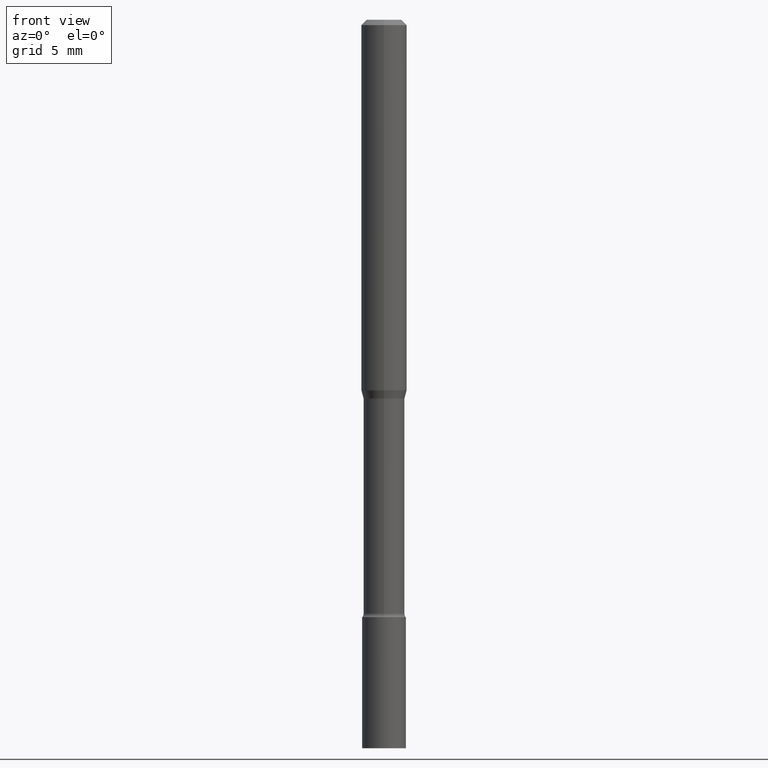
[diagram: clean part render]
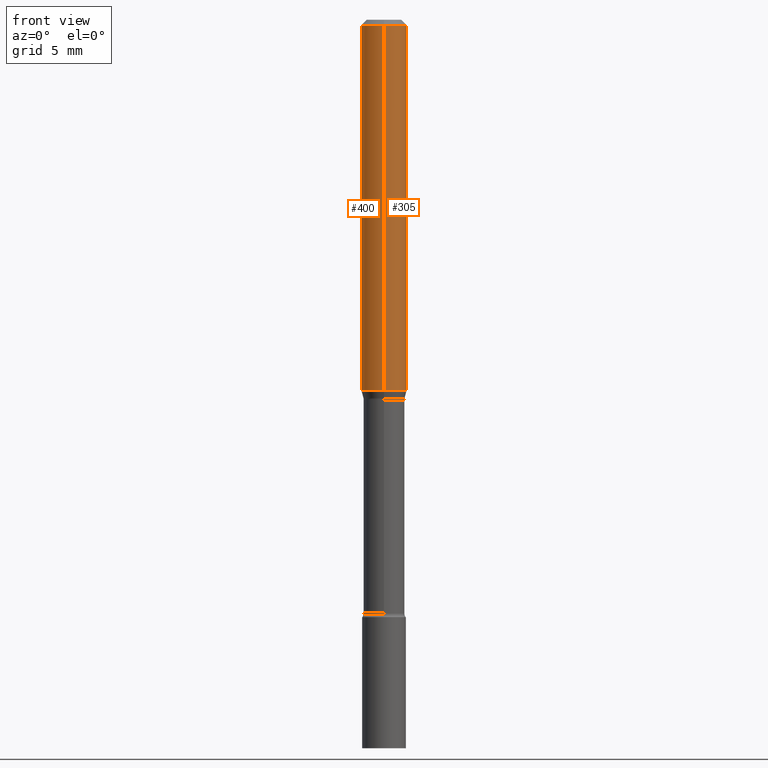
[diagram: same view with one multi-face feature highlighted, each face labeled with its STEP entity id]
A machine part, front view. The highlighted faces form ONE feature: a constant-radius fillet chain: 2 tangent blend faces with common blend radius 1.5875 mm. The faces share edges in the B-rep.
Their STEP definitions:
[1] entity #305 (Cylinder):
#8 = AXIS2_PLACEMENT_3D ( 'NONE', #200, #489, #378 ) ;
#17 = AXIS2_PLACEMENT_3D ( 'NONE', #251, #411, #154 ) ;
#56 = CIRCLE ( 'NONE', #8, 0.06250000000000000000 ) ;
#74 = DIRECTION ( 'NONE',  ( -2.445460846528019435E-29, 3.491492737525173105E-15, 1.000000000000000000 ) ) ;
#78 = CYLINDRICAL_SURFACE ( 'NONE', #17, 0.06250000000000000000 ) ;
#90 = CIRCLE ( 'NONE', #294, 0.06250000000000000000 ) ;
#96 = ORIENTED_EDGE ( 'NONE', *, *, #271, .T. ) ;
#102 = EDGE_LOOP ( 'NONE', ( #96, #181, #389, #187 ) ) ;
#154 = DIRECTION ( 'NONE',  ( -6.982962677686265922E-15, -1.000000000000000000, 3.491492737525173105E-15 ) ) ;
#156 = CARTESIAN_POINT ( 'NONE',  ( -4.364351673553916201E-16, -0.06250000000000000000, 2.182182960953233191E-16 ) ) ;
#160 = EDGE_CURVE ( 'NONE', #226, #349, #244, .T. ) ;
#162 = CARTESIAN_POINT ( 'NONE',  ( -4.364351673553912750E-16, -0.06250000000000005551, -0.01499999999999981209 ) ) ;
#181 = ORIENTED_EDGE ( 'NONE', *, *, #361, .T. ) ;
#187 = ORIENTED_EDGE ( 'NONE', *, *, #160, .F. ) ;
#200 = CARTESIAN_POINT ( 'NONE',  ( 3.668191269792036562E-31, -5.237239106287770234E-17, -0.01500000000000003067 ) ) ;
#202 = CARTESIAN_POINT ( 'NONE',  ( -4.364351673553668696E-16, -0.06250000000000356659, -1.017234490073829489 ) ) ;
#203 = DIRECTION ( 'NONE',  ( -2.445460846528019435E-29, 3.491492737525173105E-15, 1.000000000000000000 ) ) ;
#211 = CARTESIAN_POINT ( 'NONE',  ( 4.440892098500625669E-16, 0.06250000000000000000, -2.182182960953233191E-16 ) ) ;
#216 = DIRECTION ( 'NONE',  ( -2.445460846528019435E-29, 3.491492737525173105E-15, 1.000000000000000000 ) ) ;
#226 = VERTEX_POINT ( 'NONE', #202 ) ;
#228 = VERTEX_POINT ( 'NONE', #365 ) ;
#244 = LINE ( 'NONE', #156, #268 ) ;
#251 = CARTESIAN_POINT ( 'NONE',  ( 0.000000000000000000, 0.000000000000000000, 0.000000000000000000 ) ) ;
#268 = VECTOR ( 'NONE', #74, 39.37007874015748143 ) ;
#271 = EDGE_CURVE ( 'NONE', #226, #464, #90, .T. ) ;
#294 = AXIS2_PLACEMENT_3D ( 'NONE', #437, #203, #515 ) ;
#305 = ADVANCED_FACE ( 'NONE', ( #446 ), #78, .T. ) ;
#332 = LINE ( 'NONE', #211, #443 ) ;
#349 = VERTEX_POINT ( 'NONE', #162 ) ;
#361 = EDGE_CURVE ( 'NONE', #464, #228, #332, .T. ) ;
#365 = CARTESIAN_POINT ( 'NONE',  ( 4.440892098500875639E-16, 0.06249999999999995143, -0.01500000000000024751 ) ) ;
#378 = DIRECTION ( 'NONE',  ( -6.982962677686265922E-15, -1.000000000000000000, 3.483106191921935554E-15 ) ) ;
#389 = ORIENTED_EDGE ( 'NONE', *, *, #482, .F. ) ;
#403 = CARTESIAN_POINT ( 'NONE',  ( 4.440892098500872681E-16, 0.06249999999999643341, -1.017234490073830155 ) ) ;
#411 = DIRECTION ( 'NONE',  ( -2.445460846528019435E-29, 3.491492737525173105E-15, 1.000000000000000000 ) ) ;
#437 = CARTESIAN_POINT ( 'NONE',  ( 2.487607117213446070E-29, -3.551666834452899485E-15, -1.017234490073829711 ) ) ;
#443 = VECTOR ( 'NONE', #216, 39.37007874015748143 ) ;
#446 = FACE_OUTER_BOUND ( 'NONE', #102, .T. ) ;
#464 = VERTEX_POINT ( 'NONE', #403 ) ;
#482 = EDGE_CURVE ( 'NONE', #349, #228, #56, .T. ) ;
#489 = DIRECTION ( 'NONE',  ( -2.445460846528019435E-29, 3.491492737525173105E-15, 1.000000000000000000 ) ) ;
#515 = DIRECTION ( 'NONE',  ( -6.982962677686265922E-15, -1.000000000000000000, 4.370956789862821150E-15 ) ) ;
[2] entity #400 (Cylinder):
#44 = DIRECTION ( 'NONE',  ( -2.445460846528019435E-29, 3.491492737525173105E-15, 1.000000000000000000 ) ) ;
#66 = DIRECTION ( 'NONE',  ( -6.982962677686265922E-15, -1.000000000000000000, 4.370956789862821150E-15 ) ) ;
#70 = CARTESIAN_POINT ( 'NONE',  ( 3.668191269792036562E-31, -5.237239106287770234E-17, -0.01500000000000003067 ) ) ;
#71 = EDGE_CURVE ( 'NONE', #464, #226, #433, .T. ) ;
#74 = DIRECTION ( 'NONE',  ( -2.445460846528019435E-29, 3.491492737525173105E-15, 1.000000000000000000 ) ) ;
#94 = FACE_OUTER_BOUND ( 'NONE', #387, .T. ) ;
#104 = ORIENTED_EDGE ( 'NONE', *, *, #71, .T. ) ;
#126 = DIRECTION ( 'NONE',  ( -6.982962677686265922E-15, -1.000000000000000000, 3.491492737525173105E-15 ) ) ;
#137 = ORIENTED_EDGE ( 'NONE', *, *, #219, .F. ) ;
#138 = ORIENTED_EDGE ( 'NONE', *, *, #361, .F. ) ;
#156 = CARTESIAN_POINT ( 'NONE',  ( -4.364351673553916201E-16, -0.06250000000000000000, 2.182182960953233191E-16 ) ) ;
#160 = EDGE_CURVE ( 'NONE', #226, #349, #244, .T. ) ;
#162 = CARTESIAN_POINT ( 'NONE',  ( -4.364351673553912750E-16, -0.06250000000000005551, -0.01499999999999981209 ) ) ;
#202 = CARTESIAN_POINT ( 'NONE',  ( -4.364351673553668696E-16, -0.06250000000000356659, -1.017234490073829489 ) ) ;
#211 = CARTESIAN_POINT ( 'NONE',  ( 4.440892098500625669E-16, 0.06250000000000000000, -2.182182960953233191E-16 ) ) ;
#216 = DIRECTION ( 'NONE',  ( -2.445460846528019435E-29, 3.491492737525173105E-15, 1.000000000000000000 ) ) ;
#219 = EDGE_CURVE ( 'NONE', #228, #349, #375, .T. ) ;
#226 = VERTEX_POINT ( 'NONE', #202 ) ;
#228 = VERTEX_POINT ( 'NONE', #365 ) ;
#244 = LINE ( 'NONE', #156, #268 ) ;
#268 = VECTOR ( 'NONE', #74, 39.37007874015748143 ) ;
#332 = LINE ( 'NONE', #211, #443 ) ;
#337 = CYLINDRICAL_SURFACE ( 'NONE', #485, 0.06250000000000000000 ) ;
#349 = VERTEX_POINT ( 'NONE', #162 ) ;
#358 = DIRECTION ( 'NONE',  ( -2.445460846528019435E-29, 3.491492737525173105E-15, 1.000000000000000000 ) ) ;
#361 = EDGE_CURVE ( 'NONE', #464, #228, #332, .T. ) ;
#364 = DIRECTION ( 'NONE',  ( -6.982962677686265922E-15, -1.000000000000000000, 3.483106191921935554E-15 ) ) ;
#365 = CARTESIAN_POINT ( 'NONE',  ( 4.440892098500875639E-16, 0.06249999999999995143, -0.01500000000000024751 ) ) ;
#375 = CIRCLE ( 'NONE', #441, 0.06250000000000000000 ) ;
#387 = EDGE_LOOP ( 'NONE', ( #138, #104, #422, #137 ) ) ;
#396 = CARTESIAN_POINT ( 'NONE',  ( 2.487607117213446070E-29, -3.551666834452899485E-15, -1.017234490073829711 ) ) ;
#400 = ADVANCED_FACE ( 'NONE', ( #94 ), #337, .T. ) ;
#403 = CARTESIAN_POINT ( 'NONE',  ( 4.440892098500872681E-16, 0.06249999999999643341, -1.017234490073830155 ) ) ;
#422 = ORIENTED_EDGE ( 'NONE', *, *, #160, .T. ) ;
#433 = CIRCLE ( 'NONE', #512, 0.06250000000000000000 ) ;
#441 = AXIS2_PLACEMENT_3D ( 'NONE', #70, #475, #364 ) ;
#443 = VECTOR ( 'NONE', #216, 39.37007874015748143 ) ;
#464 = VERTEX_POINT ( 'NONE', #403 ) ;
#475 = DIRECTION ( 'NONE',  ( -2.445460846528019435E-29, 3.491492737525173105E-15, 1.000000000000000000 ) ) ;
#483 = CARTESIAN_POINT ( 'NONE',  ( 0.000000000000000000, 0.000000000000000000, 0.000000000000000000 ) ) ;
#485 = AXIS2_PLACEMENT_3D ( 'NONE', #483, #44, #126 ) ;
#512 = AXIS2_PLACEMENT_3D ( 'NONE', #396, #358, #66 ) ;